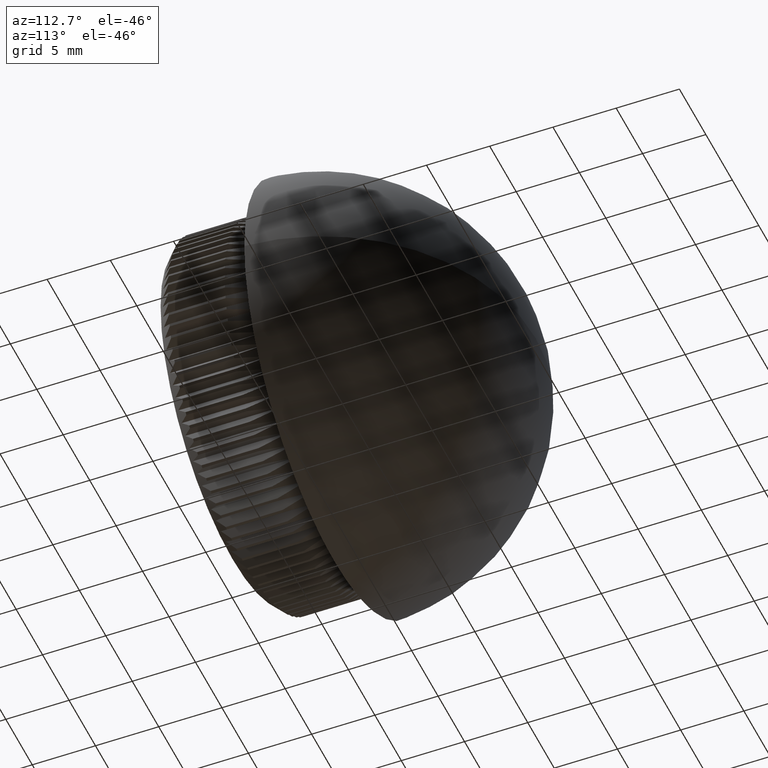
[diagram: clean part render]
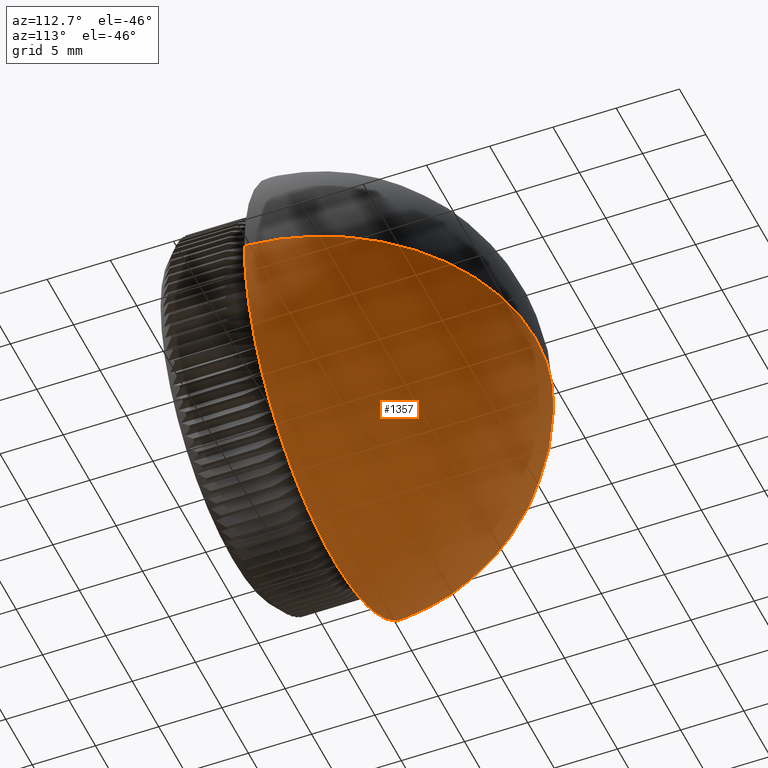
[diagram: same view with one face highlighted and labeled with its STEP entity id]
A machine part, auxiliary view. The second image highlights one B-rep face of the part: STEP entity #1357.
In plain terms, the highlighted spherical surface has radius 16.8726 mm.
Its self-contained STEP definition (entity closure, byte-faithful):
#145 = VERTEX_POINT ( 'NONE', #3077 ) ;
#1357 = ADVANCED_FACE ( 'NONE', ( #17120 ), #17701, .T. ) ;
#1964 = CIRCLE ( 'NONE', #10930, 16.85000000000000500 ) ;
#2808 = CARTESIAN_POINT ( 'NONE',  ( 0.0000000000000000000, 7.127421874999999600, 0.0000000000000000000 ) ) ;
#3077 = CARTESIAN_POINT ( 'NONE',  ( 1.033147439707245100E-015, 24.00000000000000000, 0.0000000000000000000 ) ) ;
#3120 = ORIENTED_EDGE ( 'NONE', *, *, #5924, .F. ) ;
#3274 = EDGE_CURVE ( 'NONE', #16692, #7991, #1964, .T. ) ;
#3516 = DIRECTION ( 'NONE',  ( -0.0000000000000000000, -1.000000000000000000, -0.0000000000000000000 ) ) ;
#5535 = CARTESIAN_POINT ( 'NONE',  ( -16.85000000000000500, 7.999999999999998200, 2.063529856563290200E-015 ) ) ;
#5924 = EDGE_CURVE ( 'NONE', #145, #16692, #16172, .T. ) ;
#6373 = ORIENTED_EDGE ( 'NONE', *, *, #13908, .T. ) ;
#7991 = VERTEX_POINT ( 'NONE', #21283 ) ;
#8657 = EDGE_LOOP ( 'NONE', ( #3120, #6373, #19163 ) ) ;
#9765 = DIRECTION ( 'NONE',  ( 1.224646799147353200E-016, -0.0000000000000000000, 1.000000000000000000 ) ) ;
#10688 = CARTESIAN_POINT ( 'NONE',  ( 0.0000000000000000000, 7.999999999999998200, 0.0000000000000000000 ) ) ;
#10751 = CIRCLE ( 'NONE', #21254, 16.87257812500000400 ) ;
#10769 = DIRECTION ( 'NONE',  ( 0.0000000000000000000, 0.0000000000000000000, -1.000000000000000000 ) ) ;
#10795 = CARTESIAN_POINT ( 'NONE',  ( 0.0000000000000000000, 7.127421874999999600, 0.0000000000000000000 ) ) ;
#10930 = AXIS2_PLACEMENT_3D ( 'NONE', #10688, #3516, #14066 ) ;
#11000 = CARTESIAN_POINT ( 'NONE',  ( 0.0000000000000000000, 7.127421874999999600, 0.0000000000000000000 ) ) ;
#11023 = DIRECTION ( 'NONE',  ( 1.000000000000000000, 0.0000000000000000000, 0.0000000000000000000 ) ) ;
#13908 = EDGE_CURVE ( 'NONE', #145, #7991, #10751, .T. ) ;
#14066 = DIRECTION ( 'NONE',  ( 0.0000000000000000000, 0.0000000000000000000, -1.000000000000000000 ) ) ;
#14669 = AXIS2_PLACEMENT_3D ( 'NONE', #10795, #16192, #11023 ) ;
#16172 = CIRCLE ( 'NONE', #19036, 16.87257812500000400 ) ;
#16192 = DIRECTION ( 'NONE',  ( 0.0000000000000000000, 0.0000000000000000000, 1.000000000000000000 ) ) ;
#16692 = VERTEX_POINT ( 'NONE', #5535 ) ;
#17120 = FACE_OUTER_BOUND ( 'NONE', #8657, .T. ) ;
#17701 = SPHERICAL_SURFACE ( 'NONE', #14669, 16.87257812500000400 ) ;
#18816 = DIRECTION ( 'NONE',  ( 1.000000000000000000, 0.0000000000000000000, -1.224646799147353000E-016 ) ) ;
#19036 = AXIS2_PLACEMENT_3D ( 'NONE', #2808, #9765, #18816 ) ;
#19163 = ORIENTED_EDGE ( 'NONE', *, *, #3274, .F. ) ;
#21254 = AXIS2_PLACEMENT_3D ( 'NONE', #11000, #10769, #21414 ) ;
#21283 = CARTESIAN_POINT ( 'NONE',  ( 16.85000000000000500, 7.999999999999998200, 0.0000000000000000000 ) ) ;
#21414 = DIRECTION ( 'NONE',  ( -1.000000000000000000, 0.0000000000000000000, 0.0000000000000000000 ) ) ;